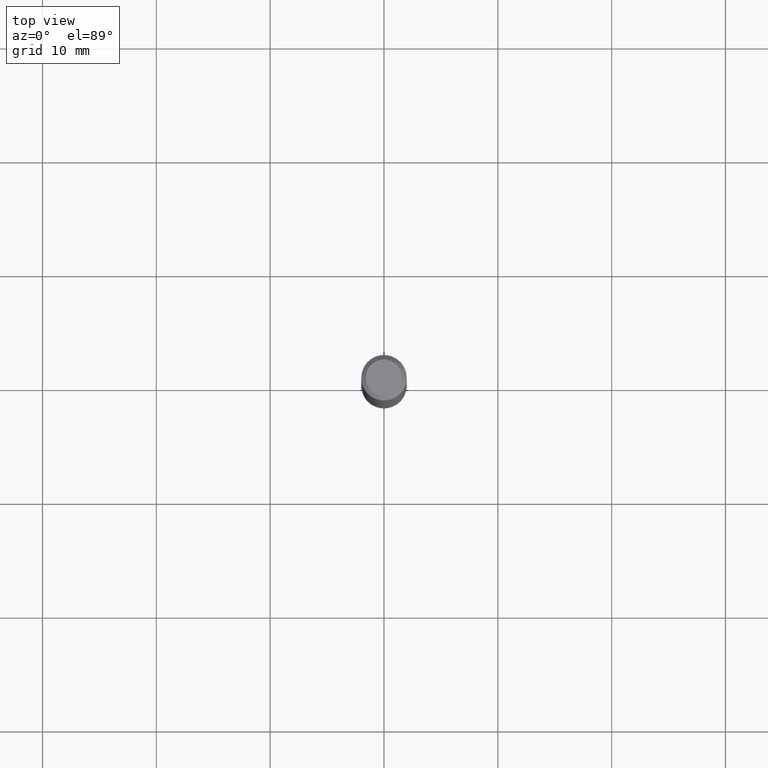
[diagram: clean part render]
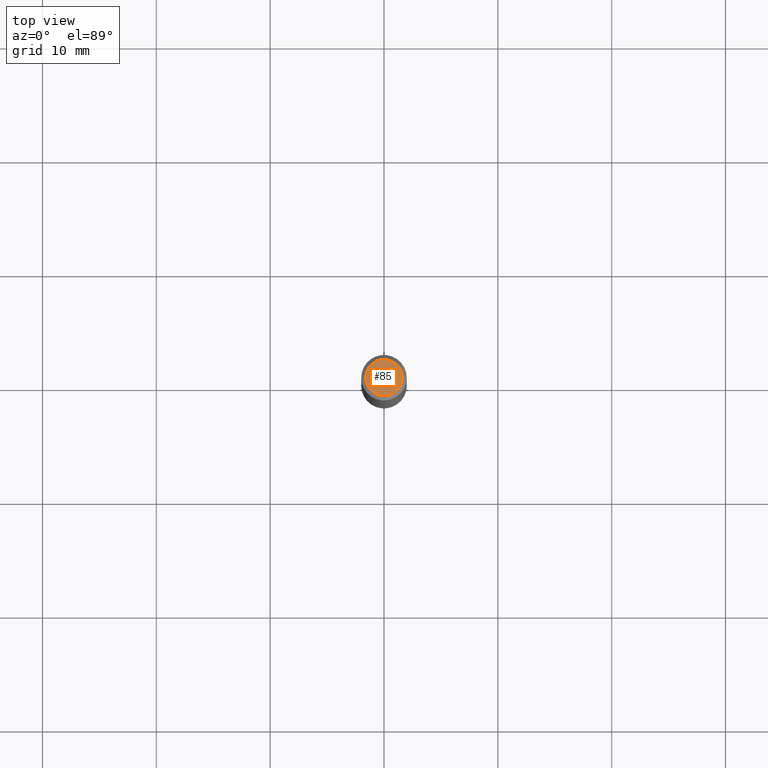
[diagram: same view with one face highlighted and labeled with its STEP entity id]
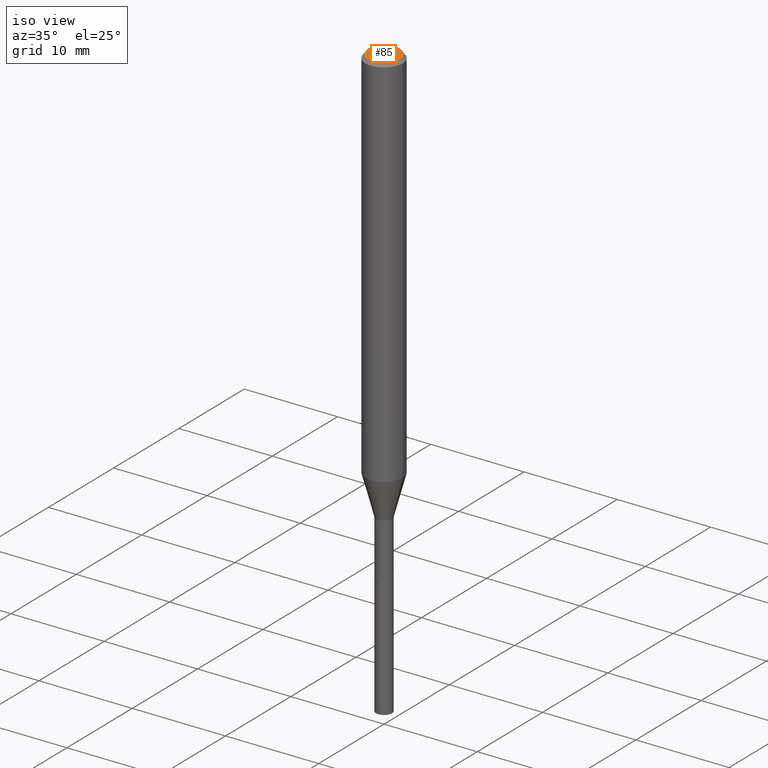
[diagram: same view with one face highlighted and labeled with its STEP entity id]
A machine part, top view. The second image highlights one B-rep face of the part: STEP entity #85.
A second angle (iso view) of the same face is appended — the face is thin or edge-on in the first view.
In plain terms, the highlighted planar face has unit normal (0, -0, -1).
Its self-contained STEP definition (entity closure, byte-faithful):
#29 = DIRECTION ( 'NONE',  ( -2.445468806185136597E-29, 3.491481338843145583E-15, 1.000000000000000000 ) ) ;
#43 = EDGE_CURVE ( 'NONE', #431, #301, #349, .T. ) ;
#55 = EDGE_CURVE ( 'NONE', #301, #431, #372, .T. ) ;
#67 = FACE_OUTER_BOUND ( 'NONE', #361, .T. ) ;
#85 = ADVANCED_FACE ( 'NONE', ( #67 ), #226, .F. ) ;
#97 = AXIS2_PLACEMENT_3D ( 'NONE', #272, #390, #421 ) ;
#146 = DIRECTION ( 'NONE',  ( 1.000000000000000000, -6.982962677686265922E-15, 4.875905316334701673E-29 ) ) ;
#182 = ORIENTED_EDGE ( 'NONE', *, *, #43, .T. ) ;
#188 = CARTESIAN_POINT ( 'NONE',  ( 9.427742298522557911E-47, -1.346031739168366987E-32, -3.855188123715866879E-18 ) ) ;
#226 = PLANE ( 'NONE',  #97 ) ;
#272 = CARTESIAN_POINT ( 'NONE',  ( 4.713871149261278955E-47, -6.730158695841834933E-33, -1.927594061857933439E-18 ) ) ;
#288 = CARTESIAN_POINT ( 'NONE',  ( -0.06300000000000000044, 4.674220642376242452E-16, -3.855188123719040041E-18 ) ) ;
#295 = CARTESIAN_POINT ( 'NONE',  ( 0.06300000000000000044, -5.137332111354472216E-16, -3.855188123712532709E-18 ) ) ;
#301 = VERTEX_POINT ( 'NONE', #295 ) ;
#307 = DIRECTION ( 'NONE',  ( 1.000000000000000000, -6.982962677686265922E-15, 4.875905316334701673E-29 ) ) ;
#340 = DIRECTION ( 'NONE',  ( -2.445468806185136597E-29, 3.491481338843145583E-15, 1.000000000000000000 ) ) ;
#349 = CIRCLE ( 'NONE', #389, 0.06300000000000000044 ) ;
#361 = EDGE_LOOP ( 'NONE', ( #182, #435 ) ) ;
#372 = CIRCLE ( 'NONE', #391, 0.06300000000000000044 ) ;
#389 = AXIS2_PLACEMENT_3D ( 'NONE', #188, #340, #146 ) ;
#390 = DIRECTION ( 'NONE',  ( 2.438088387897960049E-29, -3.491481338843145188E-15, -1.000000000000000000 ) ) ;
#391 = AXIS2_PLACEMENT_3D ( 'NONE', #419, #29, #307 ) ;
#419 = CARTESIAN_POINT ( 'NONE',  ( 9.427742298522557911E-47, -1.346031739168366987E-32, -3.855188123715866879E-18 ) ) ;
#421 = DIRECTION ( 'NONE',  ( -1.000000000000000000, 6.982962677686265922E-15, -4.876176775795935793E-29 ) ) ;
#431 = VERTEX_POINT ( 'NONE', #288 ) ;
#435 = ORIENTED_EDGE ( 'NONE', *, *, #55, .T. ) ;